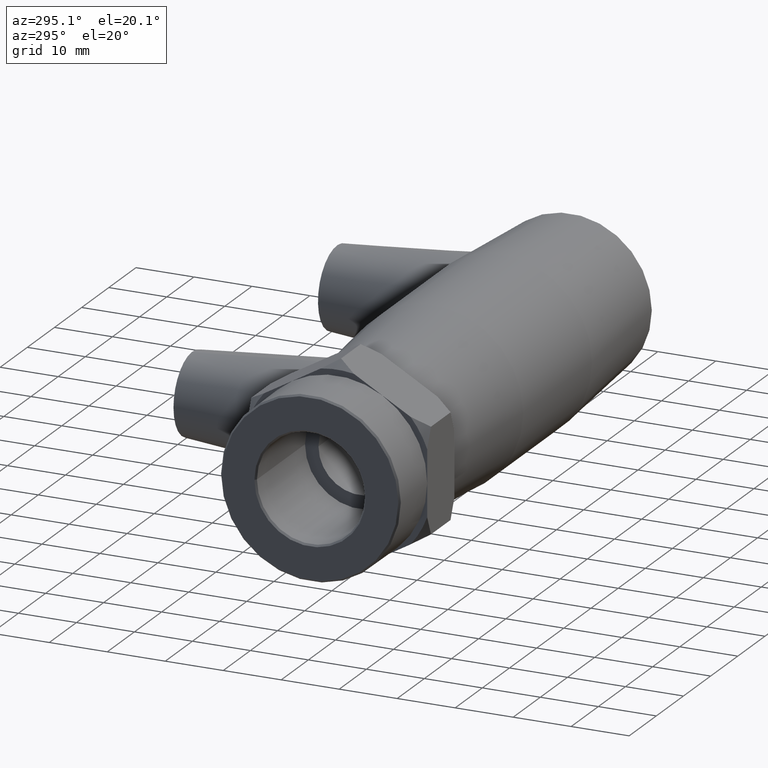
[diagram: clean part render]
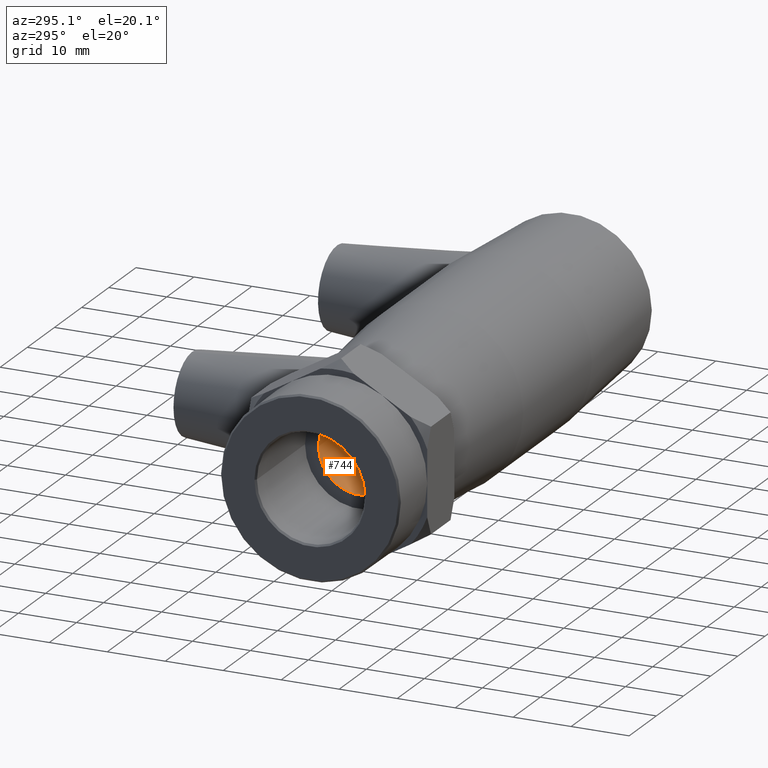
[diagram: same view with one face highlighted and labeled with its STEP entity id]
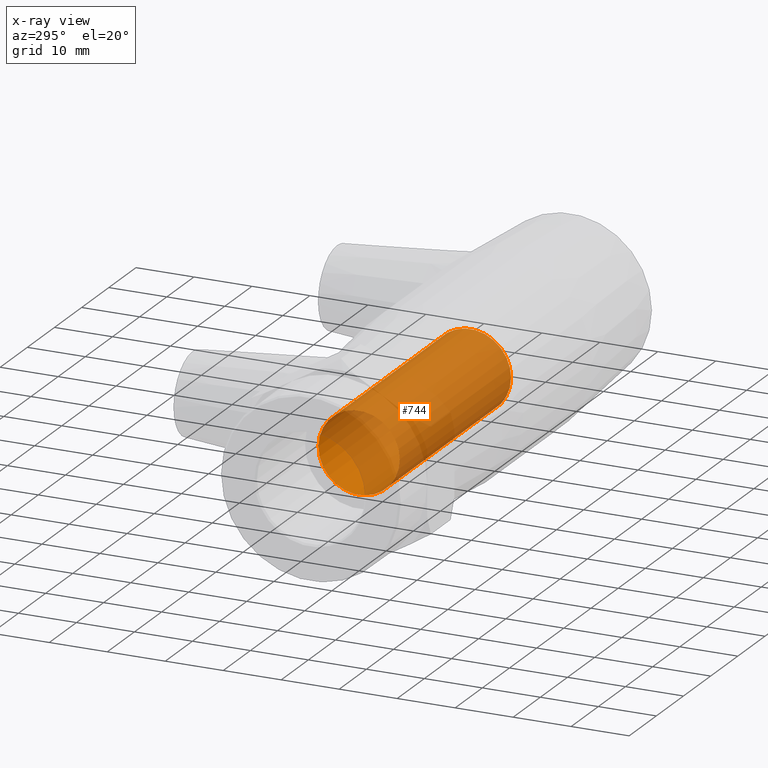
[diagram: x-ray of the same camera — body ghosted, the highlighted face saturated]
A machine part, auxiliary view. The second image highlights one B-rep face of the part: STEP entity #744.
The next image is the same camera in x-ray: the body ghosted, the highlighted face saturated — about 91% of this face is hidden behind the body in this view.
In plain terms, the highlighted cylindrical surface (bore or boss wall) has radius 7 mm, axis along (1, 0, 0).
Its self-contained STEP definition (entity closure, byte-faithful):
#92=CYLINDRICAL_SURFACE('',#827,7.);
#131=FACE_BOUND('',#248,.T.);
#185=FACE_OUTER_BOUND('',#247,.T.);
#247=EDGE_LOOP('',(#637));
#248=EDGE_LOOP('',(#638));
#318=CIRCLE('',#828,7.00000000000001);
#319=CIRCLE('',#829,7.);
#387=VERTEX_POINT('',#1299);
#388=VERTEX_POINT('',#1301);
#482=EDGE_CURVE('',#387,#387,#318,.T.);
#483=EDGE_CURVE('',#388,#388,#319,.T.);
#637=ORIENTED_EDGE('',*,*,#482,.T.);
#638=ORIENTED_EDGE('',*,*,#483,.F.);
#744=ADVANCED_FACE('',(#185,#131),#92,.F.);
#827=AXIS2_PLACEMENT_3D('',#1298,#1011,#1012);
#828=AXIS2_PLACEMENT_3D('',#1300,#1013,#1014);
#829=AXIS2_PLACEMENT_3D('',#1302,#1015,#1016);
#1011=DIRECTION('center_axis',(1.,0.,0.));
#1012=DIRECTION('ref_axis',(0.,1.,0.));
#1013=DIRECTION('center_axis',(1.,0.,0.));
#1014=DIRECTION('ref_axis',(0.,0.,-1.));
#1015=DIRECTION('center_axis',(1.,0.,0.));
#1016=DIRECTION('ref_axis',(0.,0.,-1.));
#1298=CARTESIAN_POINT('Origin',(-19.5,0.,0.));
#1299=CARTESIAN_POINT('',(1.00000000000001,7.00000000000001,0.));
#1300=CARTESIAN_POINT('Origin',(1.00000000000001,0.,0.));
#1301=CARTESIAN_POINT('',(-40.,7.,0.));
#1302=CARTESIAN_POINT('Origin',(-40.,0.,0.));